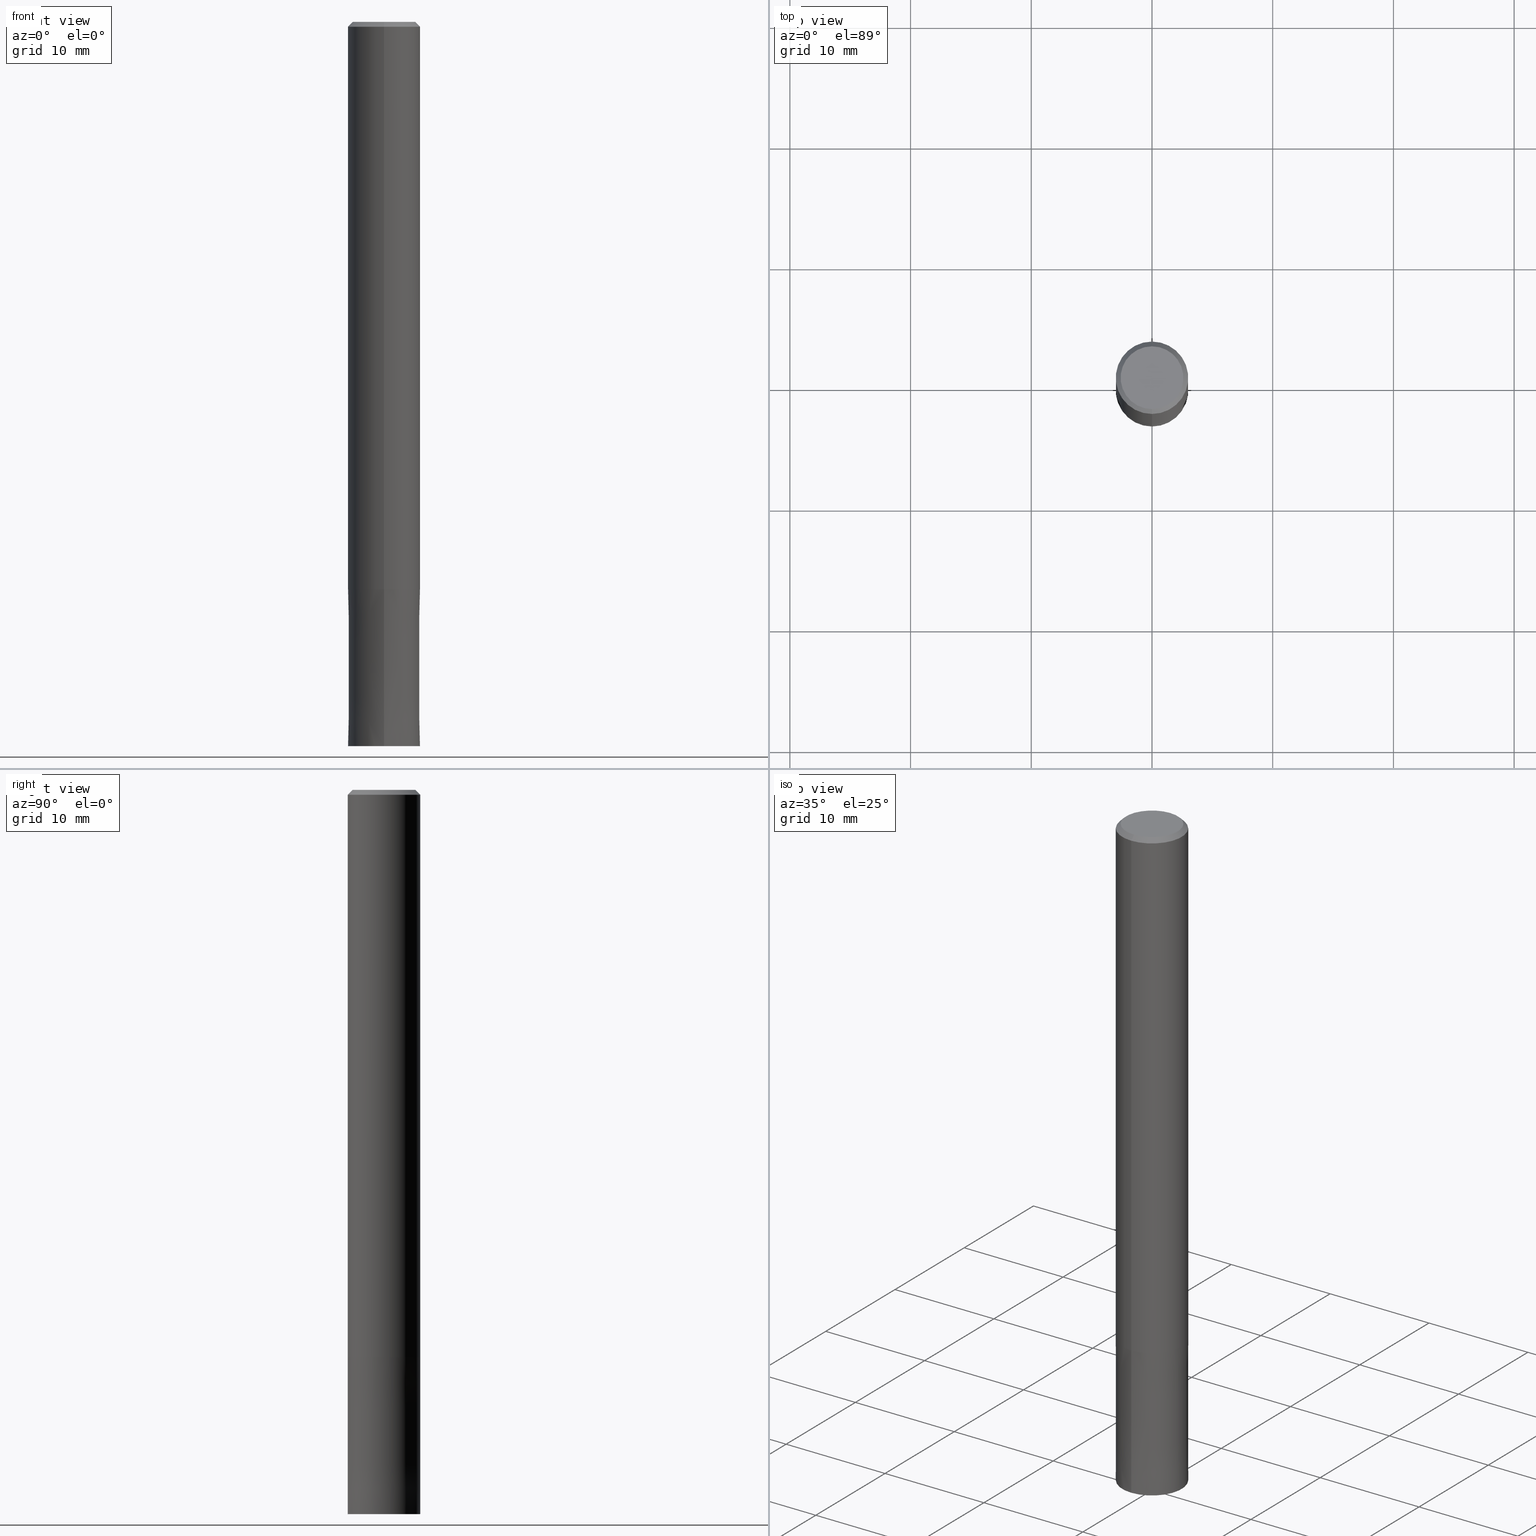
[diagram: canonical four-view strip — front | top / right | iso, engineering-drawing reading convention]
A machine part, canonical four-view strip (front | top / right | iso — engineering-drawing reading convention). The complete STEP part file that produces these views, byte-faithful:
ISO-10303-21;
HEADER;
FILE_DESCRIPTION(('no description'),'unknown implementation level');
FILE_NAME('CZS4060-1300-Huellk.stp','  ',('CIMSOURCE GmbH'),('CADClick - KiM GmbH - www.kimweb.de'),'unknown preprocess','ACIS','unknown authorization');
FILE_SCHEMA(('automotive_design'));
ENDSEC;
DATA;
#1=MECHANICAL_DESIGN_GEOMETRIC_PRESENTATION_REPRESENTATION(' ',(#10,#11,#12,#13,#14,#15,#16,#17,#18,#19,#20,#21,#22,#23,#24,#25,#26,#27,#28,#29,#30,#31,#32,#33,#34,#35,#36,#37,#38,#39,#40,#41,#42,#43,#44,#45),#6);
#2=PRODUCT_DEFINITION_CONTEXT('',#46,'design');
#3=APPLICATION_PROTOCOL_DEFINITION('INTERNATIONAL STANDARD','automotive_design',1994,#46);
#4=PRODUCT_CATEGORY_RELATIONSHIP('NONE','NONE',#47,#48);
#5=SHAPE_DEFINITION_REPRESENTATION(#49,#50);
#6= (GEOMETRIC_REPRESENTATION_CONTEXT(3)GLOBAL_UNCERTAINTY_ASSIGNED_CONTEXT((#53))GLOBAL_UNIT_ASSIGNED_CONTEXT((#55,#56,#57))REPRESENTATION_CONTEXT('NONE','WORKSPACE'));
#10=STYLED_ITEM('',(#59),#60);
#11=STYLED_ITEM('',(#61),#62);
#12=STYLED_ITEM('',(#63),#64);
#13=STYLED_ITEM('',(#65),#66);
#14=STYLED_ITEM('',(#67),#68);
#15=STYLED_ITEM('',(#69),#70);
#16=STYLED_ITEM('',(#71),#72);
#17=STYLED_ITEM('',(#73),#74);
#18=STYLED_ITEM('',(#75),#76);
#19=STYLED_ITEM('',(#77),#78);
#20=STYLED_ITEM('',(#79),#80);
#21=STYLED_ITEM('',(#81),#82);
#22=STYLED_ITEM('',(#83),#84);
#23=STYLED_ITEM('',(#85),#86);
#24=STYLED_ITEM('',(#87),#88);
#25=STYLED_ITEM('',(#89),#90);
#26=STYLED_ITEM('',(#91),#92);
#27=STYLED_ITEM('',(#93),#94);
#28=STYLED_ITEM('',(#95),#96);
#29=STYLED_ITEM('',(#97),#98);
#30=STYLED_ITEM('',(#99),#100);
#31=STYLED_ITEM('',(#101),#102);
#32=STYLED_ITEM('',(#103),#104);
#33=STYLED_ITEM('',(#105),#106);
#34=STYLED_ITEM('',(#107),#108);
#35=STYLED_ITEM('',(#109),#110);
#36=STYLED_ITEM('',(#111),#112);
#37=STYLED_ITEM('',(#113),#114);
#38=STYLED_ITEM('',(#115),#116);
#39=STYLED_ITEM('',(#117),#118);
#40=STYLED_ITEM('',(#119),#120);
#41=STYLED_ITEM('',(#121),#122);
#42=STYLED_ITEM('',(#123),#124);
#43=STYLED_ITEM('',(#125),#126);
#44=STYLED_ITEM('',(#127),#128);
#45=STYLED_ITEM('',(#129),#130);
#46=APPLICATION_CONTEXT(' ');
#47=PRODUCT_CATEGORY('part','NONE');
#48=PRODUCT_RELATED_PRODUCT_CATEGORY('detail',' ',(#131));
#49=PRODUCT_DEFINITION_SHAPE('NONE','NONE',#132);
#50=ADVANCED_BREP_SHAPE_REPRESENTATION('1',(#90,#133),#6);
#53=UNCERTAINTY_MEASURE_WITH_UNIT(LENGTH_MEASURE(1.0E-006),#55,'','');
#55= (CONVERSION_BASED_UNIT('MILLIMETRE',#136)LENGTH_UNIT()NAMED_UNIT(#139));
#56= (NAMED_UNIT(#141)PLANE_ANGLE_UNIT()SI_UNIT($,.RADIAN.));
#57= (NAMED_UNIT(#141)SOLID_ANGLE_UNIT()SI_UNIT($,.STERADIAN.));
#59=PRESENTATION_STYLE_ASSIGNMENT((#147));
#60=VERTEX_POINT('',#148);
#61=PRESENTATION_STYLE_ASSIGNMENT((#149));
#62=EDGE_CURVE('',#102,#60,#150,.T.);
#63=PRESENTATION_STYLE_ASSIGNMENT((#151));
#64=EDGE_CURVE('',#82,#70,#152,.T.);
#65=PRESENTATION_STYLE_ASSIGNMENT((#153));
#66=EDGE_CURVE('',#78,#108,#154,.T.);
#67=PRESENTATION_STYLE_ASSIGNMENT((#155));
#68=ADVANCED_FACE('',(#156),#157,.T.);
#69=PRESENTATION_STYLE_ASSIGNMENT((#158));
#70=VERTEX_POINT('',#159);
#71=PRESENTATION_STYLE_ASSIGNMENT((#160));
#72=EDGE_CURVE('',#60,#102,#161,.T.);
#73=PRESENTATION_STYLE_ASSIGNMENT((#162));
#74=ADVANCED_FACE('',(#163),#164,.T.);
#75=PRESENTATION_STYLE_ASSIGNMENT((#165));
#76=EDGE_CURVE('',#70,#82,#166,.T.);
#77=PRESENTATION_STYLE_ASSIGNMENT((#167));
#78=VERTEX_POINT('',#168);
#79=PRESENTATION_STYLE_ASSIGNMENT((#169));
#80=EDGE_CURVE('',#116,#128,#170,.T.);
#81=PRESENTATION_STYLE_ASSIGNMENT((#171));
#82=VERTEX_POINT('',#172);
#83=PRESENTATION_STYLE_ASSIGNMENT((#173));
#84=EDGE_CURVE('',#78,#98,#174,.T.);
#85=PRESENTATION_STYLE_ASSIGNMENT((#175));
#86=ADVANCED_FACE('',(#176),#177,.T.);
#87=PRESENTATION_STYLE_ASSIGNMENT((#178));
#88=EDGE_CURVE('',#92,#108,#179,.T.);
#89=PRESENTATION_STYLE_ASSIGNMENT((#180));
#90=MANIFOLD_SOLID_BREP('1',#181);
#91=PRESENTATION_STYLE_ASSIGNMENT((#182));
#92=VERTEX_POINT('',#183);
#93=PRESENTATION_STYLE_ASSIGNMENT((#184));
#94=ADVANCED_FACE('',(#185),#186,.T.);
#95=PRESENTATION_STYLE_ASSIGNMENT((#187));
#96=ADVANCED_FACE('',(#188),#189,.T.);
#97=PRESENTATION_STYLE_ASSIGNMENT((#190));
#98=VERTEX_POINT('',#191);
#99=PRESENTATION_STYLE_ASSIGNMENT((#192));
#100=EDGE_CURVE('',#60,#70,#193,.T.);
#101=PRESENTATION_STYLE_ASSIGNMENT((#194));
#102=VERTEX_POINT('',#195);
#103=PRESENTATION_STYLE_ASSIGNMENT((#196));
#104=EDGE_CURVE('',#116,#82,#197,.T.);
#105=PRESENTATION_STYLE_ASSIGNMENT((#198));
#106=EDGE_CURVE('',#92,#98,#199,.T.);
#107=PRESENTATION_STYLE_ASSIGNMENT((#200));
#108=VERTEX_POINT('',#201);
#109=PRESENTATION_STYLE_ASSIGNMENT((#202));
#110=EDGE_CURVE('',#82,#102,#203,.T.);
#111=PRESENTATION_STYLE_ASSIGNMENT((#204));
#112=ADVANCED_FACE('',(#205),#206,.T.);
#113=PRESENTATION_STYLE_ASSIGNMENT((#207));
#114=EDGE_CURVE('',#70,#128,#208,.T.);
#115=PRESENTATION_STYLE_ASSIGNMENT((#209));
#116=VERTEX_POINT('',#210);
#117=PRESENTATION_STYLE_ASSIGNMENT((#211));
#118=EDGE_CURVE('',#128,#116,#212,.T.);
#119=PRESENTATION_STYLE_ASSIGNMENT((#213));
#120=EDGE_CURVE('',#98,#92,#214,.T.);
#121=PRESENTATION_STYLE_ASSIGNMENT((#215));
#122=ADVANCED_FACE('',(#216),#217,.T.);
#123=PRESENTATION_STYLE_ASSIGNMENT((#218));
#124=ADVANCED_FACE('',(#219,#220),#221,.T.);
#125=PRESENTATION_STYLE_ASSIGNMENT((#222));
#126=ADVANCED_FACE('',(#223),#224,.T.);
#127=PRESENTATION_STYLE_ASSIGNMENT((#225));
#128=VERTEX_POINT('',#226);
#129=PRESENTATION_STYLE_ASSIGNMENT((#227));
#130=EDGE_CURVE('',#108,#78,#228,.T.);
#131=PRODUCT('1','1','PART-1-DESC',(#229));
#132=PRODUCT_DEFINITION('NONE','NONE',#230,#2);
#133=AXIS2_PLACEMENT_3D('',#231,#232,#233);
#136=LENGTH_MEASURE_WITH_UNIT(LENGTH_MEASURE(1.0),#234);
#139=DIMENSIONAL_EXPONENTS(1.0,0.0,0.0,0.0,0.0,0.0,0.0);
#141=DIMENSIONAL_EXPONENTS(0.0,0.0,0.0,0.0,0.0,0.0,0.0);
#147=POINT_STYLE(' ',#235,POSITIVE_LENGTH_MEASURE(1.0E-006),#236);
#148=CARTESIAN_POINT('',(0.0,2.6,0.0));
#149=CURVE_STYLE('',#237,POSITIVE_LENGTH_MEASURE(1.0E-006),#238);
#150=CIRCLE('',#239,2.6);
#151=CURVE_STYLE('',#240,POSITIVE_LENGTH_MEASURE(1.0E-006),#241);
#152=CIRCLE('',#242,3.0);
#153=CURVE_STYLE('',#243,POSITIVE_LENGTH_MEASURE(1.0E-006),#244);
#154=CIRCLE('',#245,2.9999);
#155=SURFACE_STYLE_USAGE(.BOTH.,#246);
#156=FACE_OUTER_BOUND('',#247,.T.);
#157=PLANE('',#248);
#158=POINT_STYLE(' ',#249,POSITIVE_LENGTH_MEASURE(1.0E-006),#250);
#159=CARTESIAN_POINT('',(0.0,3.0,-0.399999999999999));
#160=CURVE_STYLE('',#251,POSITIVE_LENGTH_MEASURE(1.0E-006),#252);
#161=CIRCLE('',#253,2.6);
#162=SURFACE_STYLE_USAGE(.BOTH.,#254);
#163=FACE_OUTER_BOUND('',#255,.T.);
#164=CYLINDRICAL_SURFACE('',#256,3.0);
#165=CURVE_STYLE('',#257,POSITIVE_LENGTH_MEASURE(1.0E-006),#258);
#166=CIRCLE('',#259,3.0);
#167=POINT_STYLE(' ',#260,POSITIVE_LENGTH_MEASURE(1.0E-006),#261);
#168=CARTESIAN_POINT('',(0.0,2.9999,-47.0));
#169=CURVE_STYLE('',#262,POSITIVE_LENGTH_MEASURE(1.0E-006),#263);
#170=CIRCLE('',#264,3.0);
#171=POINT_STYLE(' ',#265,POSITIVE_LENGTH_MEASURE(1.0E-006),#266);
#172=CARTESIAN_POINT('',(3.67381906146713E-016,-3.0,-0.399999999999999));
#173=CURVE_STYLE('',#267,POSITIVE_LENGTH_MEASURE(1.0E-006),#268);
#174=LINE('',#269,#270);
#175=SURFACE_STYLE_USAGE(.BOTH.,#271);
#176=FACE_OUTER_BOUND('',#272,.T.);
#177=CONICAL_SURFACE('',#273,2.99995,7.6923076921722E-006);
#178=CURVE_STYLE('',#274,POSITIVE_LENGTH_MEASURE(1.0E-006),#275);
#179=LINE('',#276,#277);
#180=SURFACE_STYLE_USAGE(.BOTH.,#278);
#181=CLOSED_SHELL('',(#112,#74,#126,#124,#96,#94,#122,#86,#68));
#182=POINT_STYLE(' ',#279,POSITIVE_LENGTH_MEASURE(1.0E-006),#280);
#183=CARTESIAN_POINT('',(3.67381906146713E-016,-3.0,-60.0));
#184=SURFACE_STYLE_USAGE(.BOTH.,#281);
#185=FACE_OUTER_BOUND('',#282,.T.);
#186=CONICAL_SURFACE('',#283,2.8,0.78539816339745);
#187=SURFACE_STYLE_USAGE(.BOTH.,#284);
#188=FACE_OUTER_BOUND('',#285,.T.);
#189=PLANE('',#286);
#190=POINT_STYLE(' ',#287,POSITIVE_LENGTH_MEASURE(1.0E-006),#288);
#191=CARTESIAN_POINT('',(0.0,3.0,-60.0));
#192=CURVE_STYLE('',#289,POSITIVE_LENGTH_MEASURE(1.0E-006),#290);
#193=LINE('',#291,#292);
#194=POINT_STYLE(' ',#293,POSITIVE_LENGTH_MEASURE(1.0E-006),#294);
#195=CARTESIAN_POINT('',(3.18397651993818E-016,-2.6,0.0));
#196=CURVE_STYLE('',#295,POSITIVE_LENGTH_MEASURE(1.0E-006),#296);
#197=LINE('',#297,#298);
#198=CURVE_STYLE('',#299,POSITIVE_LENGTH_MEASURE(1.0E-006),#300);
#199=CIRCLE('',#301,3.0);
#200=POINT_STYLE(' ',#302,POSITIVE_LENGTH_MEASURE(1.0E-006),#303);
#201=CARTESIAN_POINT('',(3.67369660083175E-016,-2.9999,-47.0));
#202=CURVE_STYLE('',#304,POSITIVE_LENGTH_MEASURE(1.0E-006),#305);
#203=LINE('',#306,#307);
#204=SURFACE_STYLE_USAGE(.BOTH.,#308);
#205=FACE_OUTER_BOUND('',#309,.T.);
#206=CONICAL_SURFACE('',#310,2.99995,7.6923076921722E-006);
#207=CURVE_STYLE('',#311,POSITIVE_LENGTH_MEASURE(1.0E-006),#312);
#208=LINE('',#313,#314);
#209=POINT_STYLE(' ',#315,POSITIVE_LENGTH_MEASURE(1.0E-006),#316);
#210=CARTESIAN_POINT('',(3.67381906146713E-016,-3.0,-47.0));
#211=CURVE_STYLE('',#317,POSITIVE_LENGTH_MEASURE(1.0E-006),#318);
#212=CIRCLE('',#319,3.0);
#213=CURVE_STYLE('',#320,POSITIVE_LENGTH_MEASURE(1.0E-006),#321);
#214=CIRCLE('',#322,3.0);
#215=SURFACE_STYLE_USAGE(.BOTH.,#323);
#216=FACE_OUTER_BOUND('',#324,.T.);
#217=CYLINDRICAL_SURFACE('',#325,3.0);
#218=SURFACE_STYLE_USAGE(.BOTH.,#326);
#219=FACE_OUTER_BOUND('',#327,.T.);
#220=FACE_BOUND('',#328,.T.);
#221=PLANE('',#329);
#222=SURFACE_STYLE_USAGE(.BOTH.,#330);
#223=FACE_OUTER_BOUND('',#331,.T.);
#224=CONICAL_SURFACE('',#332,2.8,0.78539816339745);
#225=POINT_STYLE(' ',#333,POSITIVE_LENGTH_MEASURE(1.0E-006),#334);
#226=CARTESIAN_POINT('',(0.0,3.0,-47.0));
#227=CURVE_STYLE('',#335,POSITIVE_LENGTH_MEASURE(1.0E-006),#336);
#228=CIRCLE('',#337,2.9999);
#229=PRODUCT_CONTEXT('',#46,'mechanical');
#230=PRODUCT_DEFINITION_FORMATION_WITH_SPECIFIED_SOURCE(' ','NONE',#131,.NOT_KNOWN.);
#231=CARTESIAN_POINT('',(0.0,0.0,0.0));
#232=DIRECTION('',(0.0,0.0,1.0));
#233=DIRECTION('',(1.0,0.0,0.0));
#234= (NAMED_UNIT(#139)LENGTH_UNIT()SI_UNIT(.MILLI.,.METRE.));
#235=PRE_DEFINED_MARKER('');
#236=COLOUR_RGB('',0.498039215803146,0.498039215803146,0.498039215803146);
#237=DRAUGHTING_PRE_DEFINED_CURVE_FONT('continuous');
#238=COLOUR_RGB('',0.498039215803146,0.498039215803146,0.498039215803146);
#239=AXIS2_PLACEMENT_3D('',#339,#340,#341);
#240=DRAUGHTING_PRE_DEFINED_CURVE_FONT('continuous');
#241=COLOUR_RGB('',0.498039215803146,0.498039215803146,0.498039215803146);
#242=AXIS2_PLACEMENT_3D('',#342,#343,#344);
#243=DRAUGHTING_PRE_DEFINED_CURVE_FONT('continuous');
#244=COLOUR_RGB('',0.800000011920929,0.800000011920929,0.800000011920929);
#245=AXIS2_PLACEMENT_3D('',#345,#346,#347);
#246=SURFACE_SIDE_STYLE('',(#348));
#247=EDGE_LOOP('',(#349,#350));
#248=AXIS2_PLACEMENT_3D('',#351,#352,#353);
#249=PRE_DEFINED_MARKER('');
#250=COLOUR_RGB('',0.498039215803146,0.498039215803146,0.498039215803146);
#251=DRAUGHTING_PRE_DEFINED_CURVE_FONT('continuous');
#252=COLOUR_RGB('',0.498039215803146,0.498039215803146,0.498039215803146);
#253=AXIS2_PLACEMENT_3D('',#354,#355,#356);
#254=SURFACE_SIDE_STYLE('',(#357));
#255=EDGE_LOOP('',(#358,#359,#360,#361));
#256=AXIS2_PLACEMENT_3D('',#362,#363,#364);
#257=DRAUGHTING_PRE_DEFINED_CURVE_FONT('continuous');
#258=COLOUR_RGB('',0.498039215803146,0.498039215803146,0.498039215803146);
#259=AXIS2_PLACEMENT_3D('',#365,#366,#367);
#260=PRE_DEFINED_MARKER('');
#261=COLOUR_RGB('',0.800000011920929,0.800000011920929,0.800000011920929);
#262=DRAUGHTING_PRE_DEFINED_CURVE_FONT('continuous');
#263=COLOUR_RGB('',0.498039215803146,0.498039215803146,0.498039215803146);
#264=AXIS2_PLACEMENT_3D('',#368,#369,#370);
#265=PRE_DEFINED_MARKER('');
#266=COLOUR_RGB('',0.498039215803146,0.498039215803146,0.498039215803146);
#267=DRAUGHTING_PRE_DEFINED_CURVE_FONT('continuous');
#268=COLOUR_RGB('',0.800000011920929,0.800000011920929,0.800000011920929);
#269=CARTESIAN_POINT('',(-3.67375783114944E-016,2.99995,-53.5));
#270=VECTOR('',#371,1.0);
#271=SURFACE_SIDE_STYLE('',(#372));
#272=EDGE_LOOP('',(#373,#374,#375,#376));
#273=AXIS2_PLACEMENT_3D('',#377,#378,#379);
#274=DRAUGHTING_PRE_DEFINED_CURVE_FONT('continuous');
#275=COLOUR_RGB('',0.800000011920929,0.800000011920929,0.800000011920929);
#276=CARTESIAN_POINT('',(3.67375783114944E-016,-2.99995,-53.5));
#277=VECTOR('',#380,1.0);
#278=SURFACE_SIDE_STYLE('',(#381));
#279=PRE_DEFINED_MARKER('');
#280=COLOUR_RGB('',0.800000011920929,0.800000011920929,0.800000011920929);
#281=SURFACE_SIDE_STYLE('',(#382));
#282=EDGE_LOOP('',(#383,#384,#385,#386));
#283=AXIS2_PLACEMENT_3D('',#387,#388,#389);
#284=SURFACE_SIDE_STYLE('',(#390));
#285=EDGE_LOOP('',(#391,#392));
#286=AXIS2_PLACEMENT_3D('',#393,#394,#395);
#287=PRE_DEFINED_MARKER('');
#288=COLOUR_RGB('',0.800000011920929,0.800000011920929,0.800000011920929);
#289=DRAUGHTING_PRE_DEFINED_CURVE_FONT('continuous');
#290=COLOUR_RGB('',0.498039215803146,0.498039215803146,0.498039215803146);
#291=CARTESIAN_POINT('',(-3.42889779070266E-016,2.8,-0.199999999999996));
#292=VECTOR('',#396,1.0);
#293=PRE_DEFINED_MARKER('');
#294=COLOUR_RGB('',0.498039215803146,0.498039215803146,0.498039215803146);
#295=DRAUGHTING_PRE_DEFINED_CURVE_FONT('continuous');
#296=COLOUR_RGB('',0.498039215803146,0.498039215803146,0.498039215803146);
#297=CARTESIAN_POINT('',(3.67381906146713E-016,-3.0,-23.7));
#298=VECTOR('',#397,1.0);
#299=DRAUGHTING_PRE_DEFINED_CURVE_FONT('continuous');
#300=COLOUR_RGB('',0.800000011920929,0.800000011920929,0.800000011920929);
#301=AXIS2_PLACEMENT_3D('',#398,#399,#400);
#302=PRE_DEFINED_MARKER('');
#303=COLOUR_RGB('',0.800000011920929,0.800000011920929,0.800000011920929);
#304=DRAUGHTING_PRE_DEFINED_CURVE_FONT('continuous');
#305=COLOUR_RGB('',0.498039215803146,0.498039215803146,0.498039215803146);
#306=CARTESIAN_POINT('',(3.42889779070266E-016,-2.8,-0.199999999999996));
#307=VECTOR('',#401,1.0);
#308=SURFACE_SIDE_STYLE('',(#402));
#309=EDGE_LOOP('',(#403,#404,#405,#406));
#310=AXIS2_PLACEMENT_3D('',#407,#408,#409);
#311=DRAUGHTING_PRE_DEFINED_CURVE_FONT('continuous');
#312=COLOUR_RGB('',0.498039215803146,0.498039215803146,0.498039215803146);
#313=CARTESIAN_POINT('',(-3.67381906146713E-016,3.0,-23.7));
#314=VECTOR('',#410,1.0);
#315=PRE_DEFINED_MARKER('');
#316=COLOUR_RGB('',0.498039215803146,0.498039215803146,0.498039215803146);
#317=DRAUGHTING_PRE_DEFINED_CURVE_FONT('continuous');
#318=COLOUR_RGB('',0.498039215803146,0.498039215803146,0.498039215803146);
#319=AXIS2_PLACEMENT_3D('',#411,#412,#413);
#320=DRAUGHTING_PRE_DEFINED_CURVE_FONT('continuous');
#321=COLOUR_RGB('',0.800000011920929,0.800000011920929,0.800000011920929);
#322=AXIS2_PLACEMENT_3D('',#414,#415,#416);
#323=SURFACE_SIDE_STYLE('',(#417));
#324=EDGE_LOOP('',(#418,#419,#420,#421));
#325=AXIS2_PLACEMENT_3D('',#422,#423,#424);
#326=SURFACE_SIDE_STYLE('',(#425));
#327=EDGE_LOOP('',(#426,#427));
#328=EDGE_LOOP('',(#428,#429));
#329=AXIS2_PLACEMENT_3D('',#430,#431,#432);
#330=SURFACE_SIDE_STYLE('',(#433));
#331=EDGE_LOOP('',(#434,#435,#436,#437));
#332=AXIS2_PLACEMENT_3D('',#438,#439,#440);
#333=PRE_DEFINED_MARKER('');
#334=COLOUR_RGB('',0.498039215803146,0.498039215803146,0.498039215803146);
#335=DRAUGHTING_PRE_DEFINED_CURVE_FONT('continuous');
#336=COLOUR_RGB('',0.800000011920929,0.800000011920929,0.800000011920929);
#337=AXIS2_PLACEMENT_3D('',#441,#442,#443);
#339=CARTESIAN_POINT('',(0.0,0.0,0.0));
#340=DIRECTION('',(0.0,0.0,-1.0));
#341=DIRECTION('',(0.0,1.0,0.0));
#342=CARTESIAN_POINT('',(0.0,0.0,-0.399999999999999));
#343=DIRECTION('',(0.0,0.0,-1.0));
#344=DIRECTION('',(0.0,1.0,0.0));
#345=CARTESIAN_POINT('',(0.0,0.0,-47.0));
#346=DIRECTION('',(0.0,0.0,-1.0));
#347=DIRECTION('',(0.0,1.0,0.0));
#348=SURFACE_STYLE_FILL_AREA(#444);
#349=ORIENTED_EDGE('',*,*,#120,.T.);
#350=ORIENTED_EDGE('',*,*,#106,.T.);
#351=CARTESIAN_POINT('',(0.0,1.4975,-60.0));
#352=DIRECTION('',(0.0,0.0,-1.0));
#353=DIRECTION('',(0.0,1.0,0.0));
#354=CARTESIAN_POINT('',(0.0,0.0,0.0));
#355=DIRECTION('',(0.0,0.0,-1.0));
#356=DIRECTION('',(0.0,1.0,0.0));
#357=SURFACE_STYLE_FILL_AREA(#445);
#358=ORIENTED_EDGE('',*,*,#114,.F.);
#359=ORIENTED_EDGE('',*,*,#76,.T.);
#360=ORIENTED_EDGE('',*,*,#104,.F.);
#361=ORIENTED_EDGE('',*,*,#118,.F.);
#362=CARTESIAN_POINT('',(0.0,0.0,-23.7));
#363=DIRECTION('',(-0.0,-0.0,1.0));
#364=DIRECTION('',(0.0,1.0,0.0));
#365=CARTESIAN_POINT('',(0.0,0.0,-0.399999999999999));
#366=DIRECTION('',(0.0,0.0,-1.0));
#367=DIRECTION('',(0.0,1.0,0.0));
#368=CARTESIAN_POINT('',(0.0,0.0,-47.0));
#369=DIRECTION('',(0.0,0.0,-1.0));
#370=DIRECTION('',(0.0,1.0,0.0));
#371=DIRECTION('',(-9.42004887529793E-022,7.69230769209634E-006,-0.999999999970414));
#372=SURFACE_STYLE_FILL_AREA(#446);
#373=ORIENTED_EDGE('',*,*,#84,.T.);
#374=ORIENTED_EDGE('',*,*,#106,.F.);
#375=ORIENTED_EDGE('',*,*,#88,.T.);
#376=ORIENTED_EDGE('',*,*,#130,.T.);
#377=CARTESIAN_POINT('',(0.0,0.0,-53.5));
#378=DIRECTION('',(0.0,-0.0,-1.0));
#379=DIRECTION('',(0.0,1.0,0.0));
#380=DIRECTION('',(-9.42004887529793E-022,7.69230769209634E-006,0.999999999970414));
#381=SURFACE_STYLE_FILL_AREA(#447);
#382=SURFACE_STYLE_FILL_AREA(#448);
#383=ORIENTED_EDGE('',*,*,#100,.T.);
#384=ORIENTED_EDGE('',*,*,#64,.F.);
#385=ORIENTED_EDGE('',*,*,#110,.T.);
#386=ORIENTED_EDGE('',*,*,#62,.T.);
#387=CARTESIAN_POINT('',(0.0,0.0,-0.199999999999996));
#388=DIRECTION('',(0.0,-0.0,-1.0));
#389=DIRECTION('',(0.0,1.0,0.0));
#390=SURFACE_STYLE_FILL_AREA(#449);
#391=ORIENTED_EDGE('',*,*,#72,.F.);
#392=ORIENTED_EDGE('',*,*,#62,.F.);
#393=CARTESIAN_POINT('',(0.0,1.3,0.0));
#394=DIRECTION('',(-0.0,0.0,1.0));
#395=DIRECTION('',(0.0,-1.0,0.0));
#396=DIRECTION('',(-8.65927457071937E-017,0.707106781186549,-0.707106781186546));
#397=DIRECTION('',(-0.0,-0.0,1.0));
#398=CARTESIAN_POINT('',(0.0,0.0,-60.0));
#399=DIRECTION('',(0.0,0.0,-1.0));
#400=DIRECTION('',(0.0,1.0,0.0));
#401=DIRECTION('',(-8.65927457071937E-017,0.707106781186549,0.707106781186546));
#402=SURFACE_STYLE_FILL_AREA(#450);
#403=ORIENTED_EDGE('',*,*,#84,.F.);
#404=ORIENTED_EDGE('',*,*,#66,.T.);
#405=ORIENTED_EDGE('',*,*,#88,.F.);
#406=ORIENTED_EDGE('',*,*,#120,.F.);
#407=CARTESIAN_POINT('',(0.0,0.0,-53.5));
#408=DIRECTION('',(0.0,-0.0,-1.0));
#409=DIRECTION('',(0.0,1.0,0.0));
#410=DIRECTION('',(0.0,0.0,-1.0));
#411=CARTESIAN_POINT('',(0.0,0.0,-47.0));
#412=DIRECTION('',(0.0,0.0,-1.0));
#413=DIRECTION('',(0.0,1.0,0.0));
#414=CARTESIAN_POINT('',(0.0,0.0,-60.0));
#415=DIRECTION('',(0.0,0.0,-1.0));
#416=DIRECTION('',(0.0,1.0,0.0));
#417=SURFACE_STYLE_FILL_AREA(#451);
#418=ORIENTED_EDGE('',*,*,#114,.T.);
#419=ORIENTED_EDGE('',*,*,#80,.F.);
#420=ORIENTED_EDGE('',*,*,#104,.T.);
#421=ORIENTED_EDGE('',*,*,#64,.T.);
#422=CARTESIAN_POINT('',(0.0,0.0,-23.7));
#423=DIRECTION('',(-0.0,-0.0,1.0));
#424=DIRECTION('',(0.0,1.0,0.0));
#425=SURFACE_STYLE_FILL_AREA(#452);
#426=ORIENTED_EDGE('',*,*,#118,.T.);
#427=ORIENTED_EDGE('',*,*,#80,.T.);
#428=ORIENTED_EDGE('',*,*,#66,.F.);
#429=ORIENTED_EDGE('',*,*,#130,.F.);
#430=CARTESIAN_POINT('',(0.0,1.5,-47.0));
#431=DIRECTION('',(0.0,0.0,-1.0));
#432=DIRECTION('',(0.0,1.0,0.0));
#433=SURFACE_STYLE_FILL_AREA(#453);
#434=ORIENTED_EDGE('',*,*,#100,.F.);
#435=ORIENTED_EDGE('',*,*,#72,.T.);
#436=ORIENTED_EDGE('',*,*,#110,.F.);
#437=ORIENTED_EDGE('',*,*,#76,.F.);
#438=CARTESIAN_POINT('',(0.0,0.0,-0.199999999999996));
#439=DIRECTION('',(0.0,-0.0,-1.0));
#440=DIRECTION('',(0.0,1.0,0.0));
#441=CARTESIAN_POINT('',(0.0,0.0,-47.0));
#442=DIRECTION('',(0.0,0.0,-1.0));
#443=DIRECTION('',(0.0,1.0,0.0));
#444=FILL_AREA_STYLE('',(#454));
#445=FILL_AREA_STYLE('',(#455));
#446=FILL_AREA_STYLE('',(#456));
#447=FILL_AREA_STYLE('',(#457));
#448=FILL_AREA_STYLE('',(#458));
#449=FILL_AREA_STYLE('',(#459));
#450=FILL_AREA_STYLE('',(#460));
#451=FILL_AREA_STYLE('',(#461));
#452=FILL_AREA_STYLE('',(#462));
#453=FILL_AREA_STYLE('',(#463));
#454=FILL_AREA_STYLE_COLOUR('',#464);
#455=FILL_AREA_STYLE_COLOUR('',#465);
#456=FILL_AREA_STYLE_COLOUR('',#466);
#457=FILL_AREA_STYLE_COLOUR('',#467);
#458=FILL_AREA_STYLE_COLOUR('',#468);
#459=FILL_AREA_STYLE_COLOUR('',#469);
#460=FILL_AREA_STYLE_COLOUR('',#470);
#461=FILL_AREA_STYLE_COLOUR('',#471);
#462=FILL_AREA_STYLE_COLOUR('',#472);
#463=FILL_AREA_STYLE_COLOUR('',#473);
#464=COLOUR_RGB('',0.800000011920929,0.800000011920929,0.800000011920929);
#465=COLOUR_RGB('',0.498039215803146,0.498039215803146,0.498039215803146);
#466=COLOUR_RGB('',0.800000011920929,0.800000011920929,0.800000011920929);
#467=COLOUR_RGB('',0.800000011920929,0.800000011920929,0.800000011920929);
#468=COLOUR_RGB('',0.498039215803146,0.498039215803146,0.498039215803146);
#469=COLOUR_RGB('',0.498039215803146,0.498039215803146,0.498039215803146);
#470=COLOUR_RGB('',0.800000011920929,0.800000011920929,0.800000011920929);
#471=COLOUR_RGB('',0.498039215803146,0.498039215803146,0.498039215803146);
#472=COLOUR_RGB('',0.498039215803146,0.498039215803146,0.498039215803146);
#473=COLOUR_RGB('',0.498039215803146,0.498039215803146,0.498039215803146);
#474=AXIS2_PLACEMENT_3D('PCS',#475,#476,#477);
#475=CARTESIAN_POINT('',(0.0,0.0,0.0));
#476=DIRECTION('',(0.0,0.0,1.0));
#477=DIRECTION('',(1.0,0.0,0.0));
#478=AXIS2_PLACEMENT_3D('CIP',#479,#480,#481);
#479=CARTESIAN_POINT('',(0.0,0.0,-60.0));
#480=DIRECTION('',(0.0,0.0,1.0));
#481=DIRECTION('',(1.0,0.0,0.0));
#482=AXIS2_PLACEMENT_3D('CRP',#483,#484,#485);
#483=CARTESIAN_POINT('',(-3.0,0.0,-60.0));
#484=DIRECTION('',(0.0,0.0,1.0));
#485=DIRECTION('',(1.0,0.0,0.0));
#486=AXIS2_PLACEMENT_3D('MCS',#487,#488,#489);
#487=CARTESIAN_POINT('',(0.0,0.0,-47.0));
#488=DIRECTION('',(0.0,0.0,1.0));
#489=DIRECTION('',(1.0,0.0,0.0));
#490=CONSTRUCTIVE_GEOMETRY_REPRESENTATION_RELATIONSHIP('coordinate systems',$,#50,#491);
#491=CONSTRUCTIVE_GEOMETRY_REPRESENTATION('coordinate systems',(#474,#478,#482,#486),#6);
ENDSEC;
END-ISO-10303-21;
